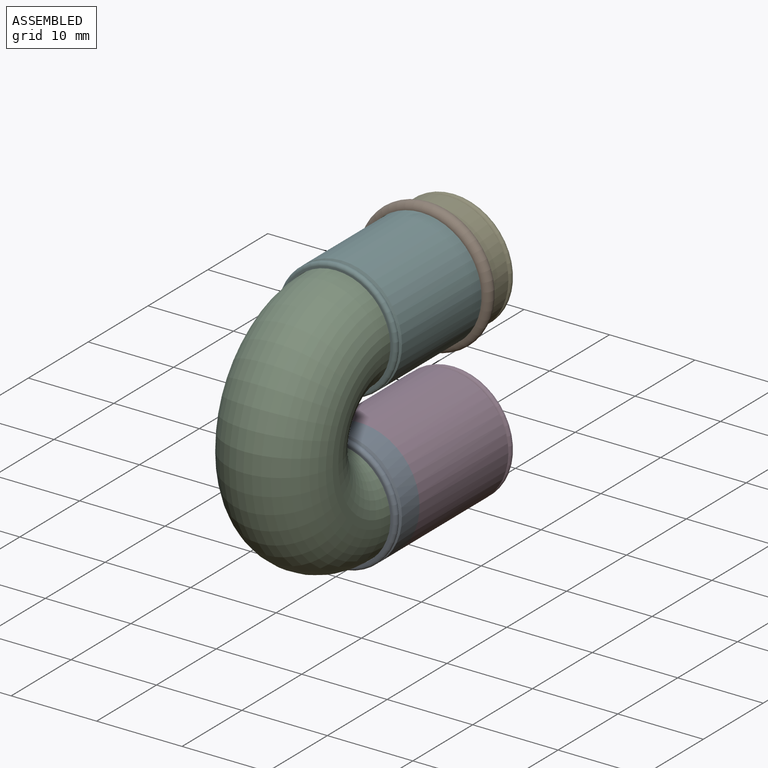
[diagram: assembled view]
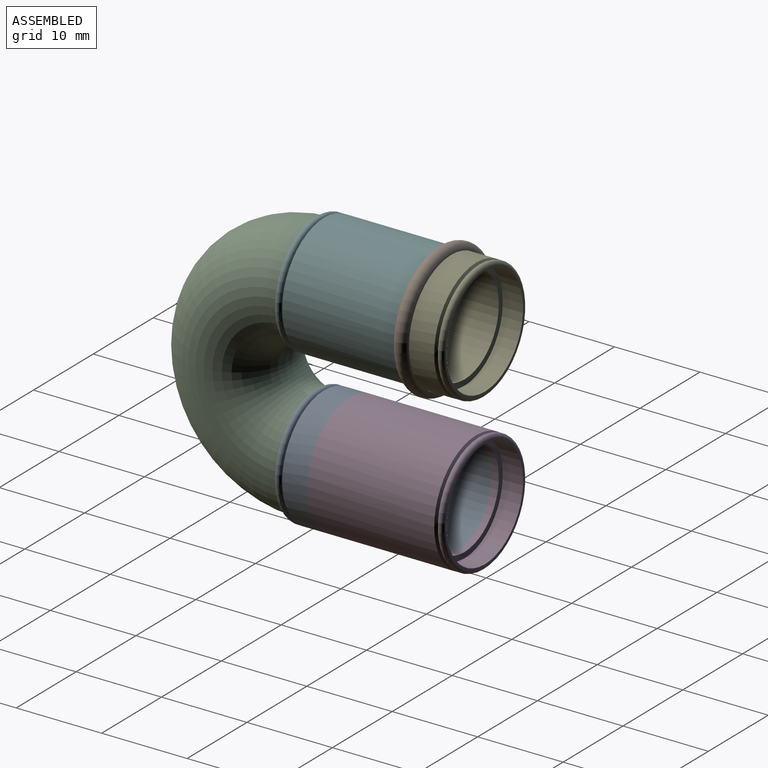
[diagram: assembled view, second angle]
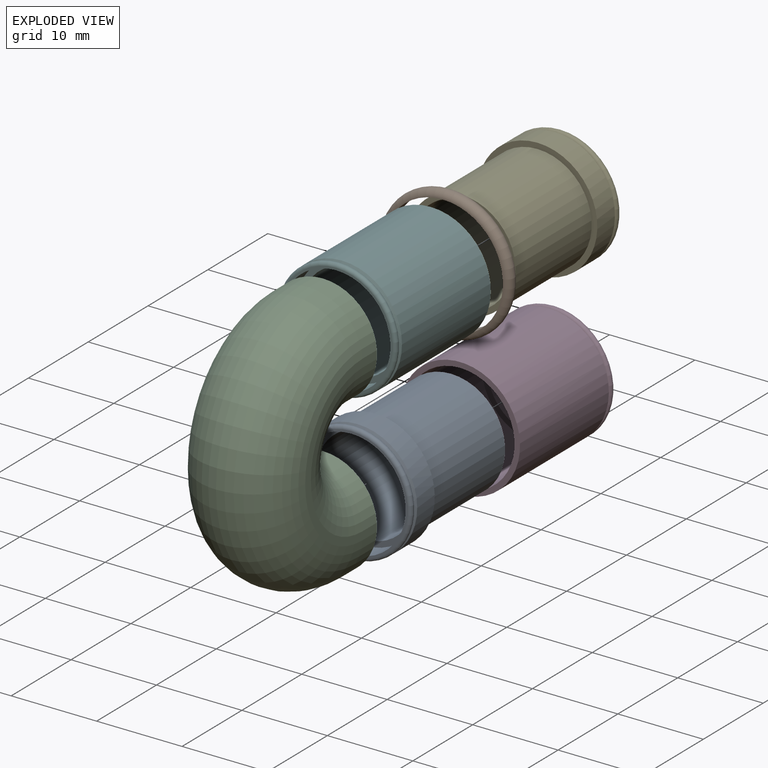
[diagram: exploded view]
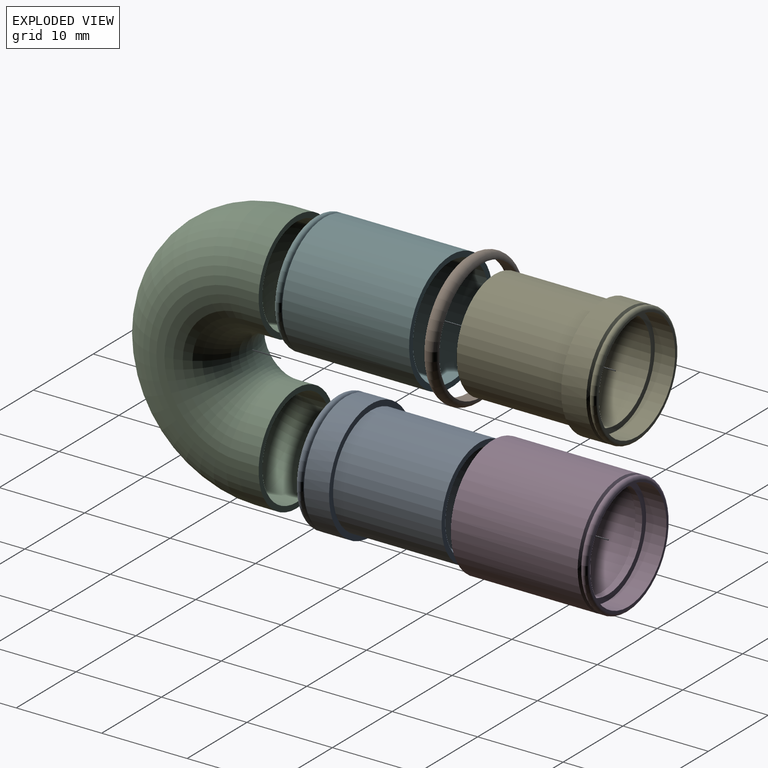
[diagram: exploded view, second angle]
ASSEMBLY  parts=6 mates=5
PART A: 10 faces, bbox 15.2x16.7x15.2 mm
  f0: plane 13.23x13.23mm, normal (0,-1,0), area 9.7mm2, adj f7,f8
  f1: plane 12.75x12.75mm, normal (0,-1,0), area 25.1mm2, adj f2,f7
  f2: cylinder r=5.71mm len=14.29mm, axis (0,-1,0), area 513mm2, adj f1,f3
  f3: plane 12.7x12.7mm, normal (0,1,0), area 24.1mm2, adj f2,f4
  f4: cylinder r=6.35mm len=12.7mm, axis (0,-1,0), area 506.7mm2, adj f3,f5
  f5: plane 14.02x14.02mm, normal (0,1,0), area 27.7mm2, adj f4,f6
  f6: cylinder r=7.01mm len=14.02mm, axis (0,-1,0), area 129.8mm2, adj f5,f9
  f7: cylinder r=6.38mm len=12.75mm, axis (0,-1,0), area 95.4mm2, adj f0,f1
  f8: torus R=6.61mm, axis (0,1,0), area 53.8mm2, adj f0,f9
  f9: cone r=6.61mm half-angle=60deg, axis (0,1,0), area 19.6mm2, adj f6,f8
PART B: 2 faces, bbox 16.9x1.6x16.9 mm
  f0: torus R=7.04mm, axis (0,-1,0), area 118.2mm2, adj f1
  f1: cylinder r=7.04mm len=14.07mm, axis (0,-1,0), area 70.2mm2, adj f0
PART C: 8 faces, bbox 12.7x19.1x33.5 mm
  f0: cylinder r=5.71mm len=11.43mm, axis (0,-1,0), area 85.5mm2, adj f1,f3
  f1: torus R=9.13mm, axis (1,0,0), area 1029.7mm2, adj f0,f2
  f2: cylinder r=5.71mm len=11.43mm, axis (0,1,0), area 85.5mm2, adj f1,f4
  f3: plane 12.7x12.7mm, normal (0,1,0), area 24.1mm2, adj f0,f5
  f4: plane 12.7x12.7mm, normal (0,1,0), area 24.1mm2, adj f2,f7
  f5: cylinder r=6.35mm len=12.7mm, axis (0,-1,0), area 95mm2, adj f3,f6
  f6: torus R=9.13mm, axis (1,0,0), area 1144.2mm2, adj f5,f7
  f7: cylinder r=6.35mm len=12.7mm, axis (0,1,0), area 95mm2, adj f4,f6
PART D: 10 faces, bbox 15.2x15.9x15.2 mm
  f0: cylinder r=7.01mm len=14.85mm, axis (0,-1,0), area 654.2mm2, adj f2,f9
  f1: plane 13.23x13.23mm, normal (0,1,0), area 9.7mm2, adj f7,f8
  f2: plane 14.02x14.02mm, normal (0,-1,0), area 26.7mm2, adj f0,f3
  f3: cylinder r=6.38mm len=12.75mm, axis (0,-1,0), area 508.7mm2, adj f2,f4
  f4: plane 12.75x12.75mm, normal (0,-1,0), area 25.1mm2, adj f3,f5
  f5: cylinder r=5.71mm len=11.43mm, axis (0,-1,0), area 28.5mm2, adj f4,f6
  f6: plane 12.75x12.75mm, normal (0,1,0), area 25.1mm2, adj f5,f7
  f7: cylinder r=6.38mm len=12.75mm, axis (0,-1,0), area 95.4mm2, adj f1,f6
  f8: torus R=6.61mm, axis (0,1,0), area 53.8mm2, adj f1,f9
  f9: cone r=6.61mm half-angle=60deg, axis (0,-1,0), area 19.6mm2, adj f0,f8
PART E: same geometry as A
PART F: same geometry as D
PLACE A t=(0,20,-0.06)mm
PLACE B t=(0,34.29,18.2)mm
PLACE C t=(0,20,9.07)mm
PLACE D t=(0,20,-0.06)mm fixed
PLACE E rot(axis=(1,0,0),180deg) t=(0,39.85,18.2)mm fixed
PLACE F rot(axis=(1,0,0),180deg) t=(0,39.85,18.2)mm
MATE fastened B.f0 <-> F.f0  axis (0,-1,0) through (0,35.88,18.2)mm
MATE fastened A.f2 <-> C.f2  axis (0,-1,0) through (0,22.39,-0.06)mm
MATE slider E.f2 <-> F.f0  axis (0,1,0) through (0,35.88,18.2)mm
MATE fastened F.f0 <-> C.f0  axis (0,-1,0) through (0,22.39,18.2)mm
MATE slider A.f2 <-> D.f0  axis (0,1,0) through (0,23.97,-0.06)mm
